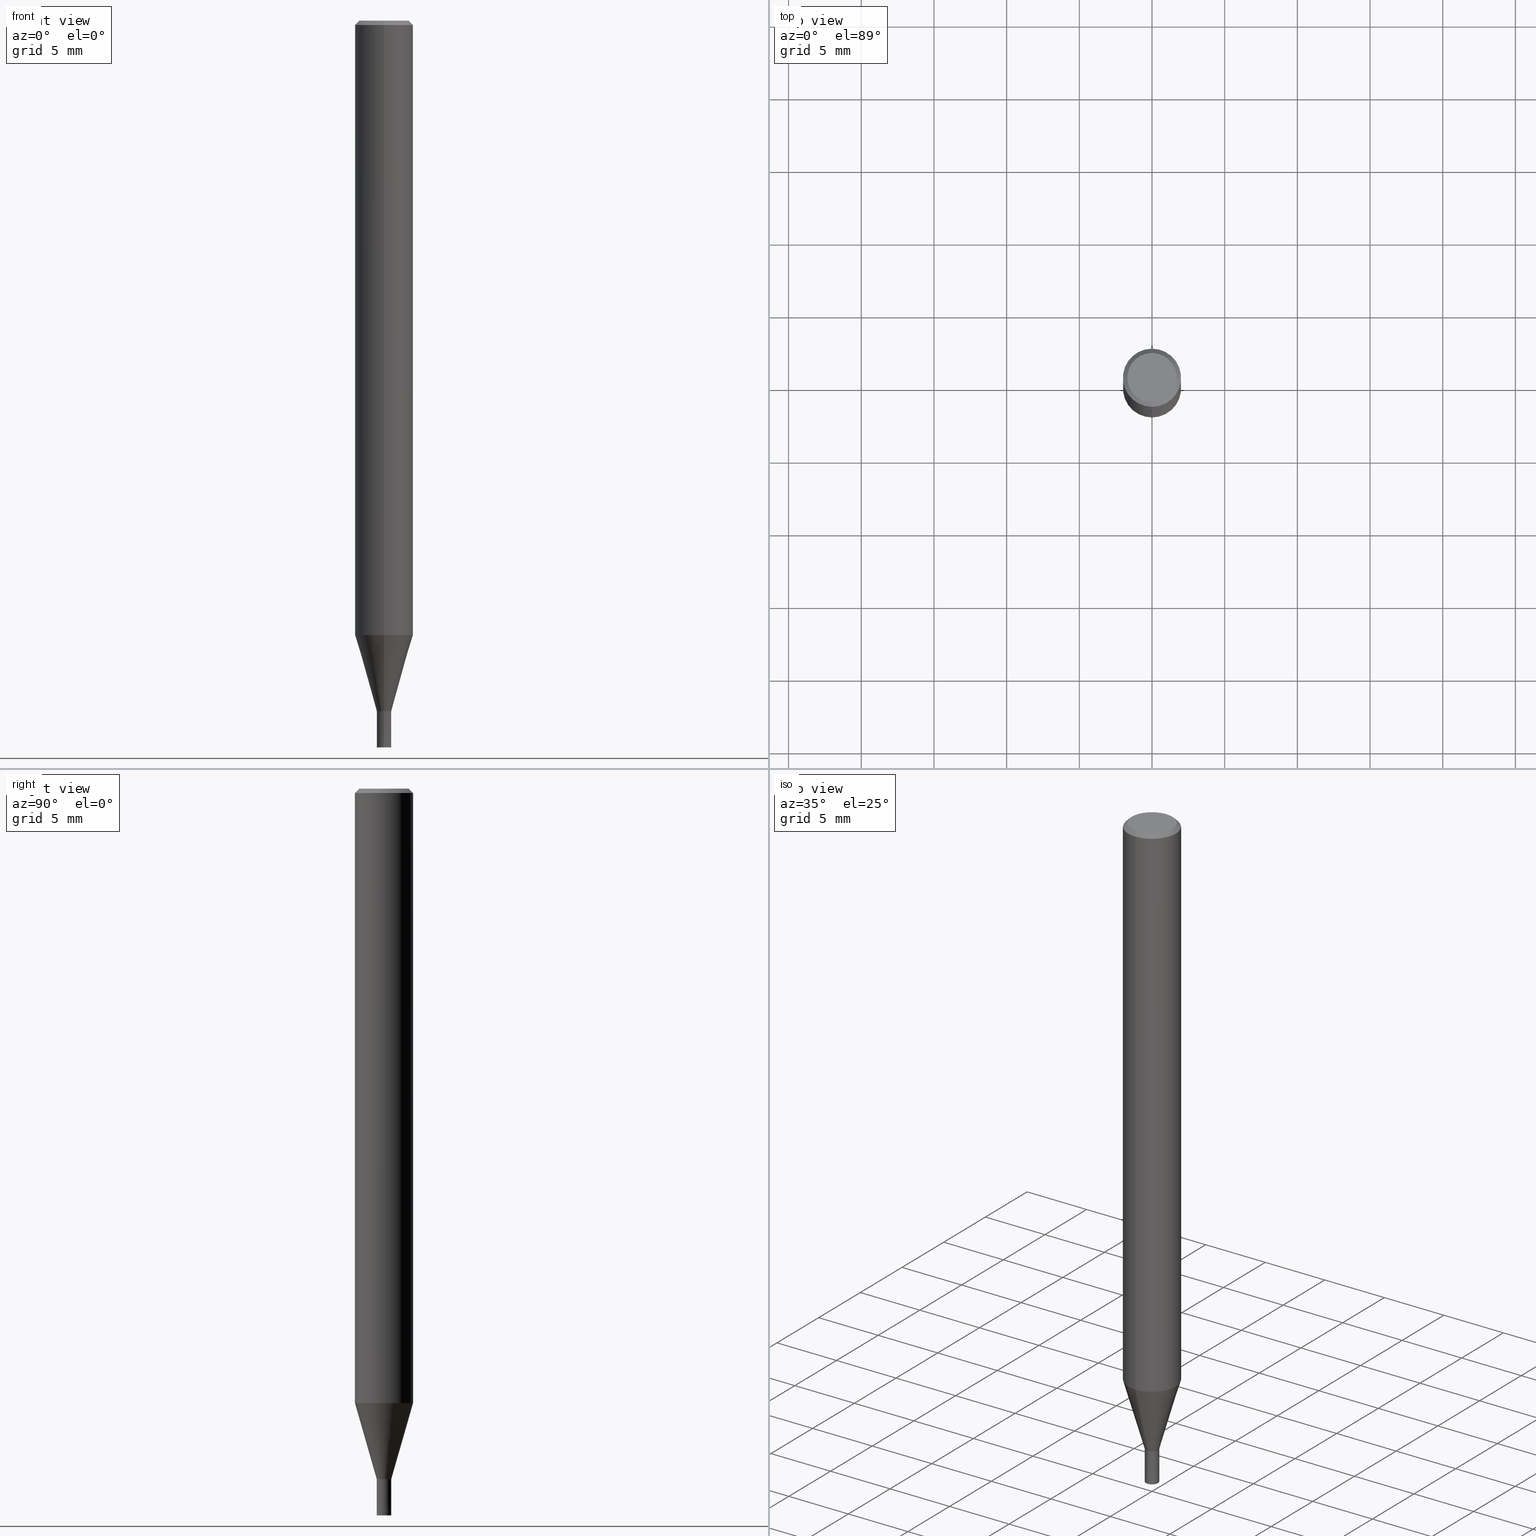
[diagram: canonical four-view strip — front | top / right | iso, engineering-drawing reading convention]
A machine part, canonical four-view strip (front | top / right | iso — engineering-drawing reading convention). The complete STEP part file that produces these views, byte-faithful:
ISO-10303-21;
HEADER;
FILE_DESCRIPTION(('no description'),'unknown implementation level');
FILE_NAME('CZS4010-0250-Huellk.stp','  ',('CIMSOURCE GmbH'),('CADClick - KiM GmbH - www.kimweb.de'),'unknown preprocess','ACIS','unknown authorization');
FILE_SCHEMA(('automotive_design'));
ENDSEC;
DATA;
#1=MECHANICAL_DESIGN_GEOMETRIC_PRESENTATION_REPRESENTATION(' ',(#14,#15,#16,#17,#18,#19,#20,#21,#22,#23,#24,#25,#26,#27,#28,#29,#30,#31,#32,#33,#34,#35,#36,#37,#38,#39,#40,#41,#42,#43,#44,#45,#46,#47,#48,#49,#50,#51,#52,#53,#54,#55,#56,#57,#58,#59,#60,#61,#62,#63,#64),#10);
#2=PRODUCT_DEFINITION_CONTEXT('',#65,'design');
#3=APPLICATION_PROTOCOL_DEFINITION('INTERNATIONAL STANDARD','automotive_design',1994,#65);
#4=PRODUCT_CATEGORY_RELATIONSHIP('NONE','NONE',#66,#67);
#5=SHAPE_DEFINITION_REPRESENTATION(#68,#69);
#6=PRODUCT_DEFINITION_CONTEXT('',#70,'design');
#7=APPLICATION_PROTOCOL_DEFINITION('INTERNATIONAL STANDARD','automotive_design',1994,#70);
#8=PRODUCT_CATEGORY_RELATIONSHIP('NONE','NONE',#71,#72);
#9=SHAPE_DEFINITION_REPRESENTATION(#73,#74);
#10= (GEOMETRIC_REPRESENTATION_CONTEXT(3)GLOBAL_UNCERTAINTY_ASSIGNED_CONTEXT((#77))GLOBAL_UNIT_ASSIGNED_CONTEXT((#79,#80,#81))REPRESENTATION_CONTEXT('NONE','WORKSPACE'));
#14=STYLED_ITEM('',(#83),#84);
#15=STYLED_ITEM('',(#85),#86);
#16=STYLED_ITEM('',(#87),#88);
#17=STYLED_ITEM('',(#89),#90);
#18=STYLED_ITEM('',(#91),#92);
#19=STYLED_ITEM('',(#93),#94);
#20=STYLED_ITEM('',(#95),#96);
#21=STYLED_ITEM('',(#97),#98);
#22=STYLED_ITEM('',(#99),#100);
#23=STYLED_ITEM('',(#101),#102);
#24=STYLED_ITEM('',(#103),#104);
#25=STYLED_ITEM('',(#105),#106);
#26=STYLED_ITEM('',(#107),#108);
#27=STYLED_ITEM('',(#109),#110);
#28=STYLED_ITEM('',(#111),#112);
#29=STYLED_ITEM('',(#113),#114);
#30=STYLED_ITEM('',(#115),#116);
#31=STYLED_ITEM('',(#117),#118);
#32=STYLED_ITEM('',(#119),#120);
#33=STYLED_ITEM('',(#121),#122);
#34=STYLED_ITEM('',(#123),#124);
#35=STYLED_ITEM('',(#125),#126);
#36=STYLED_ITEM('',(#127),#128);
#37=STYLED_ITEM('',(#129),#130);
#38=STYLED_ITEM('',(#131),#132);
#39=STYLED_ITEM('',(#133),#134);
#40=STYLED_ITEM('',(#135),#136);
#41=STYLED_ITEM('',(#137),#138);
#42=STYLED_ITEM('',(#139),#140);
#43=STYLED_ITEM('',(#141),#142);
#44=STYLED_ITEM('',(#143),#144);
#45=STYLED_ITEM('',(#145),#146);
#46=STYLED_ITEM('',(#147),#148);
#47=STYLED_ITEM('',(#149),#150);
#48=STYLED_ITEM('',(#151),#152);
#49=STYLED_ITEM('',(#153),#154);
#50=STYLED_ITEM('',(#155),#156);
#51=STYLED_ITEM('',(#157),#158);
#52=STYLED_ITEM('',(#159),#160);
#53=STYLED_ITEM('',(#161),#162);
#54=STYLED_ITEM('',(#163),#164);
#55=STYLED_ITEM('',(#165),#166);
#56=STYLED_ITEM('',(#167),#168);
#57=STYLED_ITEM('',(#169),#170);
#58=STYLED_ITEM('',(#171),#172);
#59=STYLED_ITEM('',(#173),#174);
#60=STYLED_ITEM('',(#175),#176);
#61=STYLED_ITEM('',(#177),#178);
#62=STYLED_ITEM('',(#179),#180);
#63=STYLED_ITEM('',(#181),#182);
#64=STYLED_ITEM('',(#183),#184);
#65=APPLICATION_CONTEXT(' ');
#66=PRODUCT_CATEGORY('part','NONE');
#67=PRODUCT_RELATED_PRODUCT_CATEGORY('detail',' ',(#185));
#68=PRODUCT_DEFINITION_SHAPE('NONE','NONE',#186);
#69=ADVANCED_BREP_SHAPE_REPRESENTATION('1',(#102,#187),#10);
#70=APPLICATION_CONTEXT(' ');
#71=PRODUCT_CATEGORY('part','NONE');
#72=PRODUCT_RELATED_PRODUCT_CATEGORY('detail',' ',(#188));
#73=PRODUCT_DEFINITION_SHAPE('NONE','NONE',#189);
#74=ADVANCED_BREP_SHAPE_REPRESENTATION('2',(#140,#190),#10);
#77=UNCERTAINTY_MEASURE_WITH_UNIT(LENGTH_MEASURE(1.0E-006),#79,'','');
#79= (CONVERSION_BASED_UNIT('MILLIMETRE',#193)LENGTH_UNIT()NAMED_UNIT(#196));
#80= (NAMED_UNIT(#198)PLANE_ANGLE_UNIT()SI_UNIT($,.RADIAN.));
#81= (NAMED_UNIT(#198)SOLID_ANGLE_UNIT()SI_UNIT($,.STERADIAN.));
#83=PRESENTATION_STYLE_ASSIGNMENT((#204));
#84=VERTEX_POINT('',#205);
#85=PRESENTATION_STYLE_ASSIGNMENT((#206));
#86=ADVANCED_FACE('',(#207),#208,.T.);
#87=PRESENTATION_STYLE_ASSIGNMENT((#209));
#88=ADVANCED_FACE('',(#210),#211,.T.);
#89=PRESENTATION_STYLE_ASSIGNMENT((#212));
#90=VERTEX_POINT('',#213);
#91=PRESENTATION_STYLE_ASSIGNMENT((#214));
#92=VERTEX_POINT('',#215);
#93=PRESENTATION_STYLE_ASSIGNMENT((#216));
#94=ADVANCED_FACE('',(#217),#218,.T.);
#95=PRESENTATION_STYLE_ASSIGNMENT((#219));
#96=ADVANCED_FACE('',(#220),#221,.T.);
#97=PRESENTATION_STYLE_ASSIGNMENT((#222));
#98=ADVANCED_FACE('',(#223),#224,.T.);
#99=PRESENTATION_STYLE_ASSIGNMENT((#225));
#100=EDGE_CURVE('',#142,#106,#226,.T.);
#101=PRESENTATION_STYLE_ASSIGNMENT((#227));
#102=MANIFOLD_SOLID_BREP('1',#228);
#103=PRESENTATION_STYLE_ASSIGNMENT((#229));
#104=EDGE_CURVE('',#128,#178,#230,.T.);
#105=PRESENTATION_STYLE_ASSIGNMENT((#231));
#106=VERTEX_POINT('',#232);
#107=PRESENTATION_STYLE_ASSIGNMENT((#233));
#108=EDGE_CURVE('',#92,#90,#234,.T.);
#109=PRESENTATION_STYLE_ASSIGNMENT((#235));
#110=ADVANCED_FACE('',(#236),#237,.T.);
#111=PRESENTATION_STYLE_ASSIGNMENT((#238));
#112=EDGE_CURVE('',#124,#182,#239,.T.);
#113=PRESENTATION_STYLE_ASSIGNMENT((#240));
#114=EDGE_CURVE('',#116,#182,#241,.T.);
#115=PRESENTATION_STYLE_ASSIGNMENT((#242));
#116=VERTEX_POINT('',#243);
#117=PRESENTATION_STYLE_ASSIGNMENT((#244));
#118=EDGE_CURVE('',#182,#124,#245,.T.);
#119=PRESENTATION_STYLE_ASSIGNMENT((#246));
#120=EDGE_CURVE('',#122,#106,#247,.T.);
#121=PRESENTATION_STYLE_ASSIGNMENT((#248));
#122=VERTEX_POINT('',#249);
#123=PRESENTATION_STYLE_ASSIGNMENT((#250));
#124=VERTEX_POINT('',#251);
#125=PRESENTATION_STYLE_ASSIGNMENT((#252));
#126=ADVANCED_FACE('',(#253,#254),#255,.T.);
#127=PRESENTATION_STYLE_ASSIGNMENT((#256));
#128=VERTEX_POINT('',#257);
#129=PRESENTATION_STYLE_ASSIGNMENT((#258));
#130=VERTEX_POINT('',#259);
#131=PRESENTATION_STYLE_ASSIGNMENT((#260));
#132=VERTEX_POINT('',#261);
#133=PRESENTATION_STYLE_ASSIGNMENT((#262));
#134=ADVANCED_FACE('',(#263),#264,.T.);
#135=PRESENTATION_STYLE_ASSIGNMENT((#265));
#136=EDGE_CURVE('',#130,#178,#266,.T.);
#137=PRESENTATION_STYLE_ASSIGNMENT((#267));
#138=EDGE_CURVE('',#150,#132,#268,.T.);
#139=PRESENTATION_STYLE_ASSIGNMENT((#269));
#140=MANIFOLD_SOLID_BREP('2',#270);
#141=PRESENTATION_STYLE_ASSIGNMENT((#271));
#142=VERTEX_POINT('',#272);
#143=PRESENTATION_STYLE_ASSIGNMENT((#273));
#144=EDGE_CURVE('',#84,#142,#274,.T.);
#145=PRESENTATION_STYLE_ASSIGNMENT((#275));
#146=EDGE_CURVE('',#132,#90,#276,.T.);
#147=PRESENTATION_STYLE_ASSIGNMENT((#277));
#148=ADVANCED_FACE('',(#278),#279,.T.);
#149=PRESENTATION_STYLE_ASSIGNMENT((#280));
#150=VERTEX_POINT('',#281);
#151=PRESENTATION_STYLE_ASSIGNMENT((#282));
#152=EDGE_CURVE('',#122,#84,#283,.T.);
#153=PRESENTATION_STYLE_ASSIGNMENT((#284));
#154=EDGE_CURVE('',#124,#128,#285,.T.);
#155=PRESENTATION_STYLE_ASSIGNMENT((#286));
#156=EDGE_CURVE('',#142,#84,#287,.T.);
#157=PRESENTATION_STYLE_ASSIGNMENT((#288));
#158=EDGE_CURVE('',#90,#92,#289,.T.);
#159=PRESENTATION_STYLE_ASSIGNMENT((#290));
#160=EDGE_CURVE('',#132,#150,#291,.T.);
#161=PRESENTATION_STYLE_ASSIGNMENT((#292));
#162=EDGE_CURVE('',#178,#130,#293,.T.);
#163=PRESENTATION_STYLE_ASSIGNMENT((#294));
#164=ADVANCED_FACE('',(#295),#296,.T.);
#165=PRESENTATION_STYLE_ASSIGNMENT((#297));
#166=EDGE_CURVE('',#128,#116,#298,.T.);
#167=PRESENTATION_STYLE_ASSIGNMENT((#299));
#168=EDGE_CURVE('',#130,#116,#300,.T.);
#169=PRESENTATION_STYLE_ASSIGNMENT((#301));
#170=EDGE_CURVE('',#116,#128,#302,.T.);
#171=PRESENTATION_STYLE_ASSIGNMENT((#303));
#172=ADVANCED_FACE('',(#304),#305,.T.);
#173=PRESENTATION_STYLE_ASSIGNMENT((#306));
#174=ADVANCED_FACE('',(#307),#308,.T.);
#175=PRESENTATION_STYLE_ASSIGNMENT((#309));
#176=ADVANCED_FACE('',(#310),#311,.T.);
#177=PRESENTATION_STYLE_ASSIGNMENT((#312));
#178=VERTEX_POINT('',#313);
#179=PRESENTATION_STYLE_ASSIGNMENT((#314));
#180=EDGE_CURVE('',#106,#122,#315,.T.);
#181=PRESENTATION_STYLE_ASSIGNMENT((#316));
#182=VERTEX_POINT('',#317);
#183=PRESENTATION_STYLE_ASSIGNMENT((#318));
#184=EDGE_CURVE('',#92,#150,#319,.T.);
#185=PRODUCT('1','1','PART-1-DESC',(#320));
#186=PRODUCT_DEFINITION('NONE','NONE',#321,#2);
#187=AXIS2_PLACEMENT_3D('',#322,#323,#324);
#188=PRODUCT('2','2','PART-2-DESC',(#325));
#189=PRODUCT_DEFINITION('NONE','NONE',#326,#6);
#190=AXIS2_PLACEMENT_3D('',#327,#328,#329);
#193=LENGTH_MEASURE_WITH_UNIT(LENGTH_MEASURE(1.0),#330);
#196=DIMENSIONAL_EXPONENTS(1.0,0.0,0.0,0.0,0.0,0.0,0.0);
#198=DIMENSIONAL_EXPONENTS(0.0,0.0,0.0,0.0,0.0,0.0,0.0);
#204=POINT_STYLE(' ',#331,POSITIVE_LENGTH_MEASURE(1.0E-006),#332);
#205=CARTESIAN_POINT('',(6.12180716275806E-017,-0.4999,-47.5));
#206=SURFACE_STYLE_USAGE(.BOTH.,#333);
#207=FACE_OUTER_BOUND('',#334,.T.);
#208=CONICAL_SURFACE('',#335,1.24995,0.279258842899557);
#209=SURFACE_STYLE_USAGE(.BOTH.,#336);
#210=FACE_OUTER_BOUND('',#337,.T.);
#211=PLANE('',#338);
#212=POINT_STYLE(' ',#339,POSITIVE_LENGTH_MEASURE(1.0E-006),#340);
#213=CARTESIAN_POINT('',(0.0,0.49995,-47.5));
#214=POINT_STYLE(' ',#341,POSITIVE_LENGTH_MEASURE(1.0E-006),#342);
#215=CARTESIAN_POINT('',(6.12241946593498E-017,-0.49995,-47.5));
#216=SURFACE_STYLE_USAGE(.BOTH.,#343);
#217=FACE_OUTER_BOUND('',#344,.T.);
#218=CYLINDRICAL_SURFACE('',#345,2.0);
#219=SURFACE_STYLE_USAGE(.BOTH.,#346);
#220=FACE_OUTER_BOUND('',#347,.T.);
#221=CONICAL_SURFACE('',#348,0.49995,3.99999999786623E-005);
#222=SURFACE_STYLE_USAGE(.BOTH.,#349);
#223=FACE_OUTER_BOUND('',#350,.T.);
#224=PLANE('',#351);
#225=CURVE_STYLE('',#352,POSITIVE_LENGTH_MEASURE(1.0E-006),#353);
#226=LINE('',#354,#355);
#227=SURFACE_STYLE_USAGE(.BOTH.,#356);
#228=CLOSED_SHELL('',(#86,#94,#148,#126,#110,#134,#164,#176,#88));
#229=CURVE_STYLE('',#357,POSITIVE_LENGTH_MEASURE(1.0E-006),#358);
#230=LINE('',#359,#360);
#231=POINT_STYLE(' ',#361,POSITIVE_LENGTH_MEASURE(1.0E-006),#362);
#232=CARTESIAN_POINT('',(0.0,0.5,-50.0));
#233=CURVE_STYLE('',#363,POSITIVE_LENGTH_MEASURE(1.0E-006),#364);
#234=CIRCLE('',#365,0.49995);
#235=SURFACE_STYLE_USAGE(.BOTH.,#366);
#236=FACE_OUTER_BOUND('',#367,.T.);
#237=PLANE('',#368);
#238=CURVE_STYLE('',#369,POSITIVE_LENGTH_MEASURE(1.0E-006),#370);
#239=CIRCLE('',#371,1.7);
#240=CURVE_STYLE('',#372,POSITIVE_LENGTH_MEASURE(1.0E-006),#373);
#241=LINE('',#374,#375);
#242=POINT_STYLE(' ',#376,POSITIVE_LENGTH_MEASURE(1.0E-006),#377);
#243=CARTESIAN_POINT('',(2.44921270764475E-016,-2.0,-0.299999999999997));
#244=CURVE_STYLE('',#378,POSITIVE_LENGTH_MEASURE(1.0E-006),#379);
#245=CIRCLE('',#380,1.7);
#246=CURVE_STYLE('',#381,POSITIVE_LENGTH_MEASURE(1.0E-006),#382);
#247=CIRCLE('',#383,0.5);
#248=POINT_STYLE(' ',#384,POSITIVE_LENGTH_MEASURE(1.0E-006),#385);
#249=CARTESIAN_POINT('',(6.12303176911189E-017,-0.5,-50.0));
#250=POINT_STYLE(' ',#386,POSITIVE_LENGTH_MEASURE(1.0E-006),#387);
#251=CARTESIAN_POINT('',(0.0,1.7,0.0));
#252=SURFACE_STYLE_USAGE(.BOTH.,#388);
#253=FACE_OUTER_BOUND('',#389,.T.);
#254=FACE_BOUND('',#390,.T.);
#255=PLANE('',#391);
#256=POINT_STYLE(' ',#392,POSITIVE_LENGTH_MEASURE(1.0E-006),#393);
#257=CARTESIAN_POINT('',(0.0,2.0,-0.299999999999997));
#258=POINT_STYLE(' ',#394,POSITIVE_LENGTH_MEASURE(1.0E-006),#395);
#259=CARTESIAN_POINT('',(2.44921270764475E-016,-2.0,-42.269));
#260=POINT_STYLE(' ',#396,POSITIVE_LENGTH_MEASURE(1.0E-006),#397);
#261=CARTESIAN_POINT('',(0.0,1.99995,-42.269));
#262=SURFACE_STYLE_USAGE(.BOTH.,#398);
#263=FACE_OUTER_BOUND('',#399,.T.);
#264=CONICAL_SURFACE('',#400,1.85,0.785398163397453);
#265=CURVE_STYLE('',#401,POSITIVE_LENGTH_MEASURE(1.0E-006),#402);
#266=CIRCLE('',#403,2.0);
#267=CURVE_STYLE('',#404,POSITIVE_LENGTH_MEASURE(1.0E-006),#405);
#268=CIRCLE('',#406,1.99995);
#269=SURFACE_STYLE_USAGE(.BOTH.,#407);
#270=CLOSED_SHELL('',(#96,#172,#174,#98));
#271=POINT_STYLE(' ',#408,POSITIVE_LENGTH_MEASURE(1.0E-006),#409);
#272=CARTESIAN_POINT('',(0.0,0.4999,-47.5));
#273=CURVE_STYLE('',#410,POSITIVE_LENGTH_MEASURE(1.0E-006),#411);
#274=CIRCLE('',#412,0.4999);
#275=CURVE_STYLE('',#413,POSITIVE_LENGTH_MEASURE(1.0E-006),#414);
#276=LINE('',#415,#416);
#277=SURFACE_STYLE_USAGE(.BOTH.,#417);
#278=FACE_OUTER_BOUND('',#418,.T.);
#279=CONICAL_SURFACE('',#419,1.85,0.785398163397453);
#280=POINT_STYLE(' ',#420,POSITIVE_LENGTH_MEASURE(1.0E-006),#421);
#281=CARTESIAN_POINT('',(2.44915147732706E-016,-1.99995,-42.269));
#282=CURVE_STYLE('',#422,POSITIVE_LENGTH_MEASURE(1.0E-006),#423);
#283=LINE('',#424,#425);
#284=CURVE_STYLE('',#426,POSITIVE_LENGTH_MEASURE(1.0E-006),#427);
#285=LINE('',#428,#429);
#286=CURVE_STYLE('',#430,POSITIVE_LENGTH_MEASURE(1.0E-006),#431);
#287=CIRCLE('',#432,0.4999);
#288=CURVE_STYLE('',#433,POSITIVE_LENGTH_MEASURE(1.0E-006),#434);
#289=CIRCLE('',#435,0.49995);
#290=CURVE_STYLE('',#436,POSITIVE_LENGTH_MEASURE(1.0E-006),#437);
#291=CIRCLE('',#438,1.99995);
#292=CURVE_STYLE('',#439,POSITIVE_LENGTH_MEASURE(1.0E-006),#440);
#293=CIRCLE('',#441,2.0);
#294=SURFACE_STYLE_USAGE(.BOTH.,#442);
#295=FACE_OUTER_BOUND('',#443,.T.);
#296=CYLINDRICAL_SURFACE('',#444,2.0);
#297=CURVE_STYLE('',#445,POSITIVE_LENGTH_MEASURE(1.0E-006),#446);
#298=CIRCLE('',#447,2.0);
#299=CURVE_STYLE('',#448,POSITIVE_LENGTH_MEASURE(1.0E-006),#449);
#300=LINE('',#450,#451);
#301=CURVE_STYLE('',#452,POSITIVE_LENGTH_MEASURE(1.0E-006),#453);
#302=CIRCLE('',#454,2.0);
#303=SURFACE_STYLE_USAGE(.BOTH.,#455);
#304=FACE_OUTER_BOUND('',#456,.T.);
#305=PLANE('',#457);
#306=SURFACE_STYLE_USAGE(.BOTH.,#458);
#307=FACE_OUTER_BOUND('',#459,.T.);
#308=CONICAL_SURFACE('',#460,0.49995,3.99999999786623E-005);
#309=SURFACE_STYLE_USAGE(.BOTH.,#461);
#310=FACE_OUTER_BOUND('',#462,.T.);
#311=CONICAL_SURFACE('',#463,1.24995,0.279258842899557);
#312=POINT_STYLE(' ',#464,POSITIVE_LENGTH_MEASURE(1.0E-006),#465);
#313=CARTESIAN_POINT('',(0.0,2.0,-42.269));
#314=CURVE_STYLE('',#466,POSITIVE_LENGTH_MEASURE(1.0E-006),#467);
#315=CIRCLE('',#468,0.5);
#316=POINT_STYLE(' ',#469,POSITIVE_LENGTH_MEASURE(1.0E-006),#470);
#317=CARTESIAN_POINT('',(2.08183080149804E-016,-1.7,0.0));
#318=CURVE_STYLE('',#471,POSITIVE_LENGTH_MEASURE(1.0E-006),#472);
#319=LINE('',#473,#474);
#320=PRODUCT_CONTEXT('',#65,'mechanical');
#321=PRODUCT_DEFINITION_FORMATION_WITH_SPECIFIED_SOURCE(' ','NONE',#185,.NOT_KNOWN.);
#322=CARTESIAN_POINT('',(0.0,0.0,0.0));
#323=DIRECTION('',(0.0,0.0,1.0));
#324=DIRECTION('',(1.0,0.0,0.0));
#325=PRODUCT_CONTEXT('',#70,'mechanical');
#326=PRODUCT_DEFINITION_FORMATION_WITH_SPECIFIED_SOURCE(' ','NONE',#188,.NOT_KNOWN.);
#327=CARTESIAN_POINT('',(0.0,0.0,0.0));
#328=DIRECTION('',(0.0,0.0,1.0));
#329=DIRECTION('',(1.0,0.0,0.0));
#330= (NAMED_UNIT(#196)LENGTH_UNIT()SI_UNIT(.MILLI.,.METRE.));
#331=PRE_DEFINED_MARKER('');
#332=COLOUR_RGB('',0.800000011920929,0.800000011920929,0.800000011920929);
#333=SURFACE_SIDE_STYLE('',(#476));
#334=EDGE_LOOP('',(#477,#478,#479,#480));
#335=AXIS2_PLACEMENT_3D('',#481,#482,#483);
#336=SURFACE_SIDE_STYLE('',(#484));
#337=EDGE_LOOP('',(#485,#486));
#338=AXIS2_PLACEMENT_3D('',#487,#488,#489);
#339=PRE_DEFINED_MARKER('');
#340=COLOUR_RGB('',0.498039215803146,0.498039215803146,0.498039215803146);
#341=PRE_DEFINED_MARKER('');
#342=COLOUR_RGB('',0.498039215803146,0.498039215803146,0.498039215803146);
#343=SURFACE_SIDE_STYLE('',(#490));
#344=EDGE_LOOP('',(#491,#492,#493,#494));
#345=AXIS2_PLACEMENT_3D('',#495,#496,#497);
#346=SURFACE_SIDE_STYLE('',(#498));
#347=EDGE_LOOP('',(#499,#500,#501,#502));
#348=AXIS2_PLACEMENT_3D('',#503,#504,#505);
#349=SURFACE_SIDE_STYLE('',(#506));
#350=EDGE_LOOP('',(#507,#508));
#351=AXIS2_PLACEMENT_3D('',#509,#510,#511);
#352=DRAUGHTING_PRE_DEFINED_CURVE_FONT('continuous');
#353=COLOUR_RGB('',0.800000011920929,0.800000011920929,0.800000011920929);
#354=CARTESIAN_POINT('',(-6.12241946593498E-017,0.49995,-48.75));
#355=VECTOR('',#512,1.0);
#356=SURFACE_SIDE_STYLE('',(#513));
#357=DRAUGHTING_PRE_DEFINED_CURVE_FONT('continuous');
#358=COLOUR_RGB('',0.498039215803146,0.498039215803146,0.498039215803146);
#359=CARTESIAN_POINT('',(-2.44921270764475E-016,2.0,-21.2845));
#360=VECTOR('',#514,1.0);
#361=PRE_DEFINED_MARKER('');
#362=COLOUR_RGB('',0.800000011920929,0.800000011920929,0.800000011920929);
#363=DRAUGHTING_PRE_DEFINED_CURVE_FONT('continuous');
#364=COLOUR_RGB('',0.498039215803146,0.498039215803146,0.498039215803146);
#365=AXIS2_PLACEMENT_3D('',#515,#516,#517);
#366=SURFACE_SIDE_STYLE('',(#518));
#367=EDGE_LOOP('',(#519,#520));
#368=AXIS2_PLACEMENT_3D('',#521,#522,#523);
#369=DRAUGHTING_PRE_DEFINED_CURVE_FONT('continuous');
#370=COLOUR_RGB('',0.498039215803146,0.498039215803146,0.498039215803146);
#371=AXIS2_PLACEMENT_3D('',#524,#525,#526);
#372=DRAUGHTING_PRE_DEFINED_CURVE_FONT('continuous');
#373=COLOUR_RGB('',0.498039215803146,0.498039215803146,0.498039215803146);
#374=CARTESIAN_POINT('',(2.2655217545714E-016,-1.85,-0.149999999999999));
#375=VECTOR('',#527,1.0);
#376=PRE_DEFINED_MARKER('');
#377=COLOUR_RGB('',0.498039215803146,0.498039215803146,0.498039215803146);
#378=DRAUGHTING_PRE_DEFINED_CURVE_FONT('continuous');
#379=COLOUR_RGB('',0.498039215803146,0.498039215803146,0.498039215803146);
#380=AXIS2_PLACEMENT_3D('',#528,#529,#530);
#381=DRAUGHTING_PRE_DEFINED_CURVE_FONT('continuous');
#382=COLOUR_RGB('',0.800000011920929,0.800000011920929,0.800000011920929);
#383=AXIS2_PLACEMENT_3D('',#531,#532,#533);
#384=PRE_DEFINED_MARKER('');
#385=COLOUR_RGB('',0.800000011920929,0.800000011920929,0.800000011920929);
#386=PRE_DEFINED_MARKER('');
#387=COLOUR_RGB('',0.498039215803146,0.498039215803146,0.498039215803146);
#388=SURFACE_SIDE_STYLE('',(#534));
#389=EDGE_LOOP('',(#535,#536));
#390=EDGE_LOOP('',(#537,#538));
#391=AXIS2_PLACEMENT_3D('',#539,#540,#541);
#392=PRE_DEFINED_MARKER('');
#393=COLOUR_RGB('',0.498039215803146,0.498039215803146,0.498039215803146);
#394=PRE_DEFINED_MARKER('');
#395=COLOUR_RGB('',0.498039215803146,0.498039215803146,0.498039215803146);
#396=PRE_DEFINED_MARKER('');
#397=COLOUR_RGB('',0.498039215803146,0.498039215803146,0.498039215803146);
#398=SURFACE_SIDE_STYLE('',(#542));
#399=EDGE_LOOP('',(#543,#544,#545,#546));
#400=AXIS2_PLACEMENT_3D('',#547,#548,#549);
#401=DRAUGHTING_PRE_DEFINED_CURVE_FONT('continuous');
#402=COLOUR_RGB('',0.498039215803146,0.498039215803146,0.498039215803146);
#403=AXIS2_PLACEMENT_3D('',#550,#551,#552);
#404=DRAUGHTING_PRE_DEFINED_CURVE_FONT('continuous');
#405=COLOUR_RGB('',0.498039215803146,0.498039215803146,0.498039215803146);
#406=AXIS2_PLACEMENT_3D('',#553,#554,#555);
#407=SURFACE_SIDE_STYLE('',(#556));
#408=PRE_DEFINED_MARKER('');
#409=COLOUR_RGB('',0.800000011920929,0.800000011920929,0.800000011920929);
#410=DRAUGHTING_PRE_DEFINED_CURVE_FONT('continuous');
#411=COLOUR_RGB('',0.800000011920929,0.800000011920929,0.800000011920929);
#412=AXIS2_PLACEMENT_3D('',#557,#558,#559);
#413=DRAUGHTING_PRE_DEFINED_CURVE_FONT('continuous');
#414=COLOUR_RGB('',0.498039215803146,0.498039215803146,0.498039215803146);
#415=CARTESIAN_POINT('',(-1.53069671196028E-016,1.24995,-44.8845));
#416=VECTOR('',#560,1.0);
#417=SURFACE_SIDE_STYLE('',(#561));
#418=EDGE_LOOP('',(#562,#563,#564,#565));
#419=AXIS2_PLACEMENT_3D('',#566,#567,#568);
#420=PRE_DEFINED_MARKER('');
#421=COLOUR_RGB('',0.498039215803146,0.498039215803146,0.498039215803146);
#422=DRAUGHTING_PRE_DEFINED_CURVE_FONT('continuous');
#423=COLOUR_RGB('',0.800000011920929,0.800000011920929,0.800000011920929);
#424=CARTESIAN_POINT('',(6.12241946593497E-017,-0.49995,-48.75));
#425=VECTOR('',#569,1.0);
#426=DRAUGHTING_PRE_DEFINED_CURVE_FONT('continuous');
#427=COLOUR_RGB('',0.498039215803146,0.498039215803146,0.498039215803146);
#428=CARTESIAN_POINT('',(-2.2655217545714E-016,1.85,-0.149999999999999));
#429=VECTOR('',#570,1.0);
#430=DRAUGHTING_PRE_DEFINED_CURVE_FONT('continuous');
#431=COLOUR_RGB('',0.800000011920929,0.800000011920929,0.800000011920929);
#432=AXIS2_PLACEMENT_3D('',#571,#572,#573);
#433=DRAUGHTING_PRE_DEFINED_CURVE_FONT('continuous');
#434=COLOUR_RGB('',0.498039215803146,0.498039215803146,0.498039215803146);
#435=AXIS2_PLACEMENT_3D('',#574,#575,#576);
#436=DRAUGHTING_PRE_DEFINED_CURVE_FONT('continuous');
#437=COLOUR_RGB('',0.498039215803146,0.498039215803146,0.498039215803146);
#438=AXIS2_PLACEMENT_3D('',#577,#578,#579);
#439=DRAUGHTING_PRE_DEFINED_CURVE_FONT('continuous');
#440=COLOUR_RGB('',0.498039215803146,0.498039215803146,0.498039215803146);
#441=AXIS2_PLACEMENT_3D('',#580,#581,#582);
#442=SURFACE_SIDE_STYLE('',(#583));
#443=EDGE_LOOP('',(#584,#585,#586,#587));
#444=AXIS2_PLACEMENT_3D('',#588,#589,#590);
#445=DRAUGHTING_PRE_DEFINED_CURVE_FONT('continuous');
#446=COLOUR_RGB('',0.498039215803146,0.498039215803146,0.498039215803146);
#447=AXIS2_PLACEMENT_3D('',#591,#592,#593);
#448=DRAUGHTING_PRE_DEFINED_CURVE_FONT('continuous');
#449=COLOUR_RGB('',0.498039215803146,0.498039215803146,0.498039215803146);
#450=CARTESIAN_POINT('',(2.44921270764475E-016,-2.0,-21.2845));
#451=VECTOR('',#594,1.0);
#452=DRAUGHTING_PRE_DEFINED_CURVE_FONT('continuous');
#453=COLOUR_RGB('',0.498039215803146,0.498039215803146,0.498039215803146);
#454=AXIS2_PLACEMENT_3D('',#595,#596,#597);
#455=SURFACE_SIDE_STYLE('',(#598));
#456=EDGE_LOOP('',(#599,#600));
#457=AXIS2_PLACEMENT_3D('',#601,#602,#603);
#458=SURFACE_SIDE_STYLE('',(#604));
#459=EDGE_LOOP('',(#605,#606,#607,#608));
#460=AXIS2_PLACEMENT_3D('',#609,#610,#611);
#461=SURFACE_SIDE_STYLE('',(#612));
#462=EDGE_LOOP('',(#613,#614,#615,#616));
#463=AXIS2_PLACEMENT_3D('',#617,#618,#619);
#464=PRE_DEFINED_MARKER('');
#465=COLOUR_RGB('',0.498039215803146,0.498039215803146,0.498039215803146);
#466=DRAUGHTING_PRE_DEFINED_CURVE_FONT('continuous');
#467=COLOUR_RGB('',0.800000011920929,0.800000011920929,0.800000011920929);
#468=AXIS2_PLACEMENT_3D('',#620,#621,#622);
#469=PRE_DEFINED_MARKER('');
#470=COLOUR_RGB('',0.498039215803146,0.498039215803146,0.498039215803146);
#471=DRAUGHTING_PRE_DEFINED_CURVE_FONT('continuous');
#472=COLOUR_RGB('',0.498039215803146,0.498039215803146,0.498039215803146);
#473=CARTESIAN_POINT('',(1.53069671196028E-016,-1.24995,-44.8845));
#474=VECTOR('',#623,1.0);
#476=SURFACE_STYLE_FILL_AREA(#624);
#477=ORIENTED_EDGE('',*,*,#146,.F.);
#478=ORIENTED_EDGE('',*,*,#160,.T.);
#479=ORIENTED_EDGE('',*,*,#184,.F.);
#480=ORIENTED_EDGE('',*,*,#158,.F.);
#481=CARTESIAN_POINT('',(0.0,0.0,-44.8845));
#482=DIRECTION('',(-0.0,-0.0,1.0));
#483=DIRECTION('',(0.0,1.0,0.0));
#484=SURFACE_STYLE_FILL_AREA(#625);
#485=ORIENTED_EDGE('',*,*,#158,.T.);
#486=ORIENTED_EDGE('',*,*,#108,.T.);
#487=CARTESIAN_POINT('',(0.0,0.249975,-47.5));
#488=DIRECTION('',(0.0,0.0,-1.0));
#489=DIRECTION('',(0.0,1.0,0.0));
#490=SURFACE_STYLE_FILL_AREA(#626);
#491=ORIENTED_EDGE('',*,*,#104,.F.);
#492=ORIENTED_EDGE('',*,*,#166,.T.);
#493=ORIENTED_EDGE('',*,*,#168,.F.);
#494=ORIENTED_EDGE('',*,*,#162,.F.);
#495=CARTESIAN_POINT('',(0.0,0.0,-21.2845));
#496=DIRECTION('',(-0.0,-0.0,1.0));
#497=DIRECTION('',(0.0,1.0,0.0));
#498=SURFACE_STYLE_FILL_AREA(#627);
#499=ORIENTED_EDGE('',*,*,#100,.F.);
#500=ORIENTED_EDGE('',*,*,#156,.T.);
#501=ORIENTED_EDGE('',*,*,#152,.F.);
#502=ORIENTED_EDGE('',*,*,#180,.F.);
#503=CARTESIAN_POINT('',(0.0,0.0,-48.75));
#504=DIRECTION('',(0.0,-0.0,-1.0));
#505=DIRECTION('',(0.0,1.0,0.0));
#506=SURFACE_STYLE_FILL_AREA(#628);
#507=ORIENTED_EDGE('',*,*,#180,.T.);
#508=ORIENTED_EDGE('',*,*,#120,.T.);
#509=CARTESIAN_POINT('',(0.0,0.2475,-50.0));
#510=DIRECTION('',(0.0,0.0,-1.0));
#511=DIRECTION('',(0.0,1.0,0.0));
#512=DIRECTION('',(-4.89842541137023E-021,3.99999999679956E-005,-0.9999999992));
#513=SURFACE_STYLE_FILL_AREA(#629);
#514=DIRECTION('',(0.0,0.0,-1.0));
#515=CARTESIAN_POINT('',(0.0,0.0,-47.5));
#516=DIRECTION('',(0.0,0.0,-1.0));
#517=DIRECTION('',(0.0,1.0,0.0));
#518=SURFACE_STYLE_FILL_AREA(#630);
#519=ORIENTED_EDGE('',*,*,#112,.F.);
#520=ORIENTED_EDGE('',*,*,#118,.F.);
#521=CARTESIAN_POINT('',(0.0,0.85,0.0));
#522=DIRECTION('',(-0.0,0.0,1.0));
#523=DIRECTION('',(0.0,-1.0,0.0));
#524=CARTESIAN_POINT('',(0.0,0.0,0.0));
#525=DIRECTION('',(0.0,0.0,-1.0));
#526=DIRECTION('',(0.0,1.0,0.0));
#527=DIRECTION('',(-8.6592745707194E-017,0.707106781186551,0.707106781186544));
#528=CARTESIAN_POINT('',(0.0,0.0,0.0));
#529=DIRECTION('',(0.0,0.0,-1.0));
#530=DIRECTION('',(0.0,1.0,0.0));
#531=CARTESIAN_POINT('',(0.0,0.0,-50.0));
#532=DIRECTION('',(0.0,0.0,-1.0));
#533=DIRECTION('',(0.0,1.0,0.0));
#534=SURFACE_STYLE_FILL_AREA(#631);
#535=ORIENTED_EDGE('',*,*,#162,.T.);
#536=ORIENTED_EDGE('',*,*,#136,.T.);
#537=ORIENTED_EDGE('',*,*,#160,.F.);
#538=ORIENTED_EDGE('',*,*,#138,.F.);
#539=CARTESIAN_POINT('',(0.0,1.0,-42.269));
#540=DIRECTION('',(0.0,0.0,-1.0));
#541=DIRECTION('',(0.0,1.0,0.0));
#542=SURFACE_STYLE_FILL_AREA(#632);
#543=ORIENTED_EDGE('',*,*,#154,.T.);
#544=ORIENTED_EDGE('',*,*,#170,.F.);
#545=ORIENTED_EDGE('',*,*,#114,.T.);
#546=ORIENTED_EDGE('',*,*,#118,.T.);
#547=CARTESIAN_POINT('',(0.0,0.0,-0.149999999999999));
#548=DIRECTION('',(0.0,-0.0,-1.0));
#549=DIRECTION('',(0.0,1.0,0.0));
#550=CARTESIAN_POINT('',(0.0,0.0,-42.269));
#551=DIRECTION('',(0.0,0.0,-1.0));
#552=DIRECTION('',(0.0,1.0,0.0));
#553=CARTESIAN_POINT('',(0.0,0.0,-42.269));
#554=DIRECTION('',(0.0,0.0,-1.0));
#555=DIRECTION('',(0.0,1.0,0.0));
#556=SURFACE_STYLE_FILL_AREA(#633);
#557=CARTESIAN_POINT('',(0.0,0.0,-47.5));
#558=DIRECTION('',(0.0,0.0,-1.0));
#559=DIRECTION('',(0.0,1.0,0.0));
#560=DIRECTION('',(3.37554511665357E-017,-0.275643279664314,-0.961259997282682));
#561=SURFACE_STYLE_FILL_AREA(#634);
#562=ORIENTED_EDGE('',*,*,#154,.F.);
#563=ORIENTED_EDGE('',*,*,#112,.T.);
#564=ORIENTED_EDGE('',*,*,#114,.F.);
#565=ORIENTED_EDGE('',*,*,#166,.F.);
#566=CARTESIAN_POINT('',(0.0,0.0,-0.149999999999999));
#567=DIRECTION('',(0.0,-0.0,-1.0));
#568=DIRECTION('',(0.0,1.0,0.0));
#569=DIRECTION('',(-4.89842541137023E-021,3.99999999679956E-005,0.9999999992));
#570=DIRECTION('',(-8.6592745707194E-017,0.707106781186551,-0.707106781186544));
#571=CARTESIAN_POINT('',(0.0,0.0,-47.5));
#572=DIRECTION('',(0.0,0.0,-1.0));
#573=DIRECTION('',(0.0,1.0,0.0));
#574=CARTESIAN_POINT('',(0.0,0.0,-47.5));
#575=DIRECTION('',(0.0,0.0,-1.0));
#576=DIRECTION('',(0.0,1.0,0.0));
#577=CARTESIAN_POINT('',(0.0,0.0,-42.269));
#578=DIRECTION('',(0.0,0.0,-1.0));
#579=DIRECTION('',(0.0,1.0,0.0));
#580=CARTESIAN_POINT('',(0.0,0.0,-42.269));
#581=DIRECTION('',(0.0,0.0,-1.0));
#582=DIRECTION('',(0.0,1.0,0.0));
#583=SURFACE_STYLE_FILL_AREA(#635);
#584=ORIENTED_EDGE('',*,*,#104,.T.);
#585=ORIENTED_EDGE('',*,*,#136,.F.);
#586=ORIENTED_EDGE('',*,*,#168,.T.);
#587=ORIENTED_EDGE('',*,*,#170,.T.);
#588=CARTESIAN_POINT('',(0.0,0.0,-21.2845));
#589=DIRECTION('',(-0.0,-0.0,1.0));
#590=DIRECTION('',(0.0,1.0,0.0));
#591=CARTESIAN_POINT('',(0.0,0.0,-0.299999999999997));
#592=DIRECTION('',(0.0,0.0,-1.0));
#593=DIRECTION('',(0.0,1.0,0.0));
#594=DIRECTION('',(-0.0,-0.0,1.0));
#595=CARTESIAN_POINT('',(0.0,0.0,-0.299999999999997));
#596=DIRECTION('',(0.0,0.0,-1.0));
#597=DIRECTION('',(0.0,1.0,0.0));
#598=SURFACE_STYLE_FILL_AREA(#636);
#599=ORIENTED_EDGE('',*,*,#156,.F.);
#600=ORIENTED_EDGE('',*,*,#144,.F.);
#601=CARTESIAN_POINT('',(0.0,0.24995,-47.5));
#602=DIRECTION('',(-0.0,0.0,1.0));
#603=DIRECTION('',(0.0,-1.0,0.0));
#604=SURFACE_STYLE_FILL_AREA(#637);
#605=ORIENTED_EDGE('',*,*,#100,.T.);
#606=ORIENTED_EDGE('',*,*,#120,.F.);
#607=ORIENTED_EDGE('',*,*,#152,.T.);
#608=ORIENTED_EDGE('',*,*,#144,.T.);
#609=CARTESIAN_POINT('',(0.0,0.0,-48.75));
#610=DIRECTION('',(0.0,-0.0,-1.0));
#611=DIRECTION('',(0.0,1.0,0.0));
#612=SURFACE_STYLE_FILL_AREA(#638);
#613=ORIENTED_EDGE('',*,*,#146,.T.);
#614=ORIENTED_EDGE('',*,*,#108,.F.);
#615=ORIENTED_EDGE('',*,*,#184,.T.);
#616=ORIENTED_EDGE('',*,*,#138,.T.);
#617=CARTESIAN_POINT('',(0.0,0.0,-44.8845));
#618=DIRECTION('',(-0.0,-0.0,1.0));
#619=DIRECTION('',(0.0,1.0,0.0));
#620=CARTESIAN_POINT('',(0.0,0.0,-50.0));
#621=DIRECTION('',(0.0,0.0,-1.0));
#622=DIRECTION('',(0.0,1.0,0.0));
#623=DIRECTION('',(3.37554511665357E-017,-0.275643279664314,0.961259997282682));
#624=FILL_AREA_STYLE('',(#639));
#625=FILL_AREA_STYLE('',(#640));
#626=FILL_AREA_STYLE('',(#641));
#627=FILL_AREA_STYLE('',(#642));
#628=FILL_AREA_STYLE('',(#643));
#629=FILL_AREA_STYLE('',(#644));
#630=FILL_AREA_STYLE('',(#645));
#631=FILL_AREA_STYLE('',(#646));
#632=FILL_AREA_STYLE('',(#647));
#633=FILL_AREA_STYLE('',(#648));
#634=FILL_AREA_STYLE('',(#649));
#635=FILL_AREA_STYLE('',(#650));
#636=FILL_AREA_STYLE('',(#651));
#637=FILL_AREA_STYLE('',(#652));
#638=FILL_AREA_STYLE('',(#653));
#639=FILL_AREA_STYLE_COLOUR('',#654);
#640=FILL_AREA_STYLE_COLOUR('',#655);
#641=FILL_AREA_STYLE_COLOUR('',#656);
#642=FILL_AREA_STYLE_COLOUR('',#657);
#643=FILL_AREA_STYLE_COLOUR('',#658);
#644=FILL_AREA_STYLE_COLOUR('',#659);
#645=FILL_AREA_STYLE_COLOUR('',#660);
#646=FILL_AREA_STYLE_COLOUR('',#661);
#647=FILL_AREA_STYLE_COLOUR('',#662);
#648=FILL_AREA_STYLE_COLOUR('',#663);
#649=FILL_AREA_STYLE_COLOUR('',#664);
#650=FILL_AREA_STYLE_COLOUR('',#665);
#651=FILL_AREA_STYLE_COLOUR('',#666);
#652=FILL_AREA_STYLE_COLOUR('',#667);
#653=FILL_AREA_STYLE_COLOUR('',#668);
#654=COLOUR_RGB('',0.498039215803146,0.498039215803146,0.498039215803146);
#655=COLOUR_RGB('',0.498039215803146,0.498039215803146,0.498039215803146);
#656=COLOUR_RGB('',0.498039215803146,0.498039215803146,0.498039215803146);
#657=COLOUR_RGB('',0.800000011920929,0.800000011920929,0.800000011920929);
#658=COLOUR_RGB('',0.800000011920929,0.800000011920929,0.800000011920929);
#659=COLOUR_RGB('',0.498039215803146,0.498039215803146,0.498039215803146);
#660=COLOUR_RGB('',0.498039215803146,0.498039215803146,0.498039215803146);
#661=COLOUR_RGB('',0.498039215803146,0.498039215803146,0.498039215803146);
#662=COLOUR_RGB('',0.498039215803146,0.498039215803146,0.498039215803146);
#663=COLOUR_RGB('',0.800000011920929,0.800000011920929,0.800000011920929);
#664=COLOUR_RGB('',0.498039215803146,0.498039215803146,0.498039215803146);
#665=COLOUR_RGB('',0.498039215803146,0.498039215803146,0.498039215803146);
#666=COLOUR_RGB('',0.800000011920929,0.800000011920929,0.800000011920929);
#667=COLOUR_RGB('',0.800000011920929,0.800000011920929,0.800000011920929);
#668=COLOUR_RGB('',0.498039215803146,0.498039215803146,0.498039215803146);
#669=AXIS2_PLACEMENT_3D('PCS',#670,#671,#672);
#670=CARTESIAN_POINT('',(0.0,0.0,0.0));
#671=DIRECTION('',(0.0,0.0,1.0));
#672=DIRECTION('',(1.0,0.0,0.0));
#673=AXIS2_PLACEMENT_3D('CIP',#674,#675,#676);
#674=CARTESIAN_POINT('',(0.0,0.0,-50.0));
#675=DIRECTION('',(0.0,0.0,1.0));
#676=DIRECTION('',(1.0,0.0,0.0));
#677=AXIS2_PLACEMENT_3D('CRP',#678,#679,#680);
#678=CARTESIAN_POINT('',(-0.5,0.0,-50.0));
#679=DIRECTION('',(0.0,0.0,1.0));
#680=DIRECTION('',(1.0,0.0,0.0));
#681=AXIS2_PLACEMENT_3D('MCS',#682,#683,#684);
#682=CARTESIAN_POINT('',(0.0,0.0,-42.269));
#683=DIRECTION('',(0.0,0.0,1.0));
#684=DIRECTION('',(1.0,0.0,0.0));
#685=CONSTRUCTIVE_GEOMETRY_REPRESENTATION_RELATIONSHIP('coordinate systems',$,#69,#686);
#686=CONSTRUCTIVE_GEOMETRY_REPRESENTATION('coordinate systems',(#669,#673,#677,#681),#10);
ENDSEC;
END-ISO-10303-21;
